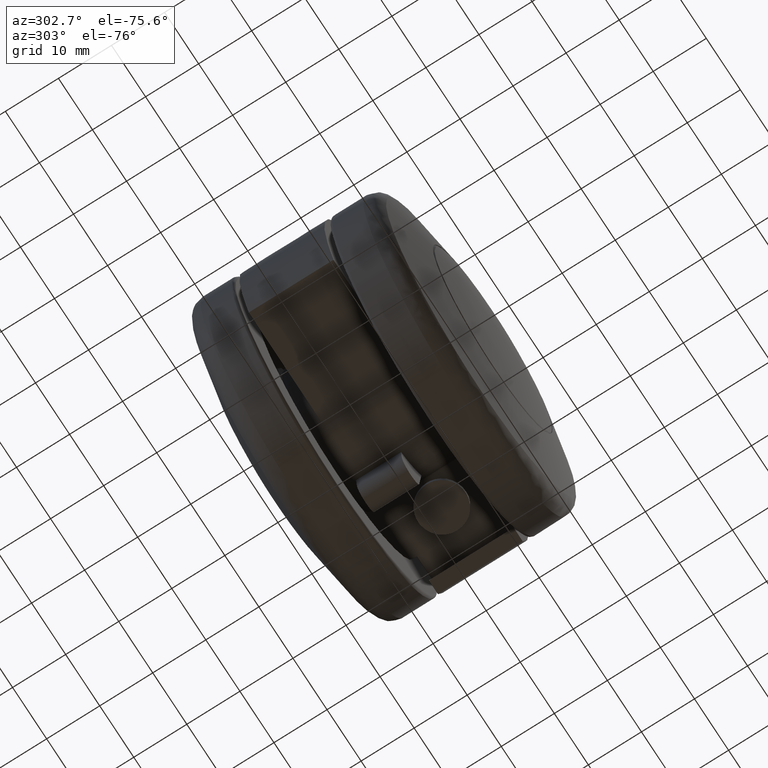
[diagram: clean part render]
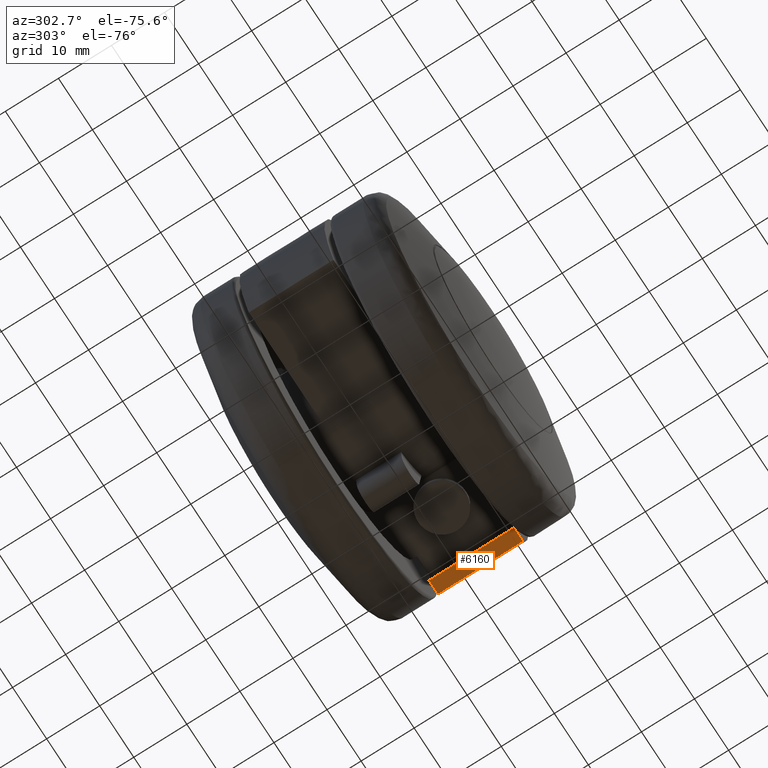
[diagram: same view with one face highlighted and labeled with its STEP entity id]
A machine part, auxiliary view. The second image highlights one B-rep face of the part: STEP entity #6160.
In plain terms, the highlighted face is a freeform B-spline surface patch.
Its self-contained STEP definition (entity closure, byte-faithful):
#6125=CARTESIAN_POINT('',(28.417482642788521,-8.799199968988885,-10.0));
#6126=CARTESIAN_POINT('',(25.484164875787261,-8.799199968988885,-10.0));
#6127=CARTESIAN_POINT('',(28.417482642788521,8.799200398142117,-10.0));
#6128=CARTESIAN_POINT('',(25.484164875787261,8.799200398142117,-10.0));
#6129=B_SPLINE_SURFACE_WITH_KNOTS('',1,1,((#6125,#6127),(#6126,#6128)),.UNSPECIFIED.,.F.,.F.,.U.,(2,2),(2,2),(0.0,2.933317767001256),(0.0,17.598400367130999),.UNSPECIFIED.);
#6130=CARTESIAN_POINT('',(25.617376914899001,7.999999999999789,-10.0));
#6131=VERTEX_POINT('',#6130);
#6132=CARTESIAN_POINT('',(28.284271247461898,7.999999999999789,-10.0));
#6133=VERTEX_POINT('',#6132);
#6134=CARTESIAN_POINT('',(25.617376914899001,7.999999999999789,-10.0));
#6135=CARTESIAN_POINT('',(28.284271247461898,7.999999999999789,-10.0));
#6136=QUASI_UNIFORM_CURVE('',1,(#6134,#6135),.UNSPECIFIED.,.F.,.U.);
#6137=EDGE_CURVE('',#6131,#6133,#6136,.T.);
#6138=ORIENTED_EDGE('',*,*,#6137,.T.);
#6139=CARTESIAN_POINT('',(28.284271247461898,-8.0,-10.0));
#6140=VERTEX_POINT('',#6139);
#6141=CARTESIAN_POINT('',(28.284271247461898,7.999999999999789,-10.0));
#6142=CARTESIAN_POINT('',(28.284271247461898,-8.0,-10.0));
#6143=QUASI_UNIFORM_CURVE('',1,(#6141,#6142),.UNSPECIFIED.,.F.,.U.);
#6144=EDGE_CURVE('',#6133,#6140,#6143,.T.);
#6145=ORIENTED_EDGE('',*,*,#6144,.T.);
#6146=CARTESIAN_POINT('',(25.617376914899001,-8.0,-10.0));
#6147=VERTEX_POINT('',#6146);
#6148=CARTESIAN_POINT('',(28.284271247461898,-8.0,-10.0));
#6149=CARTESIAN_POINT('',(25.617376914899001,-8.0,-10.0));
#6150=QUASI_UNIFORM_CURVE('',1,(#6148,#6149),.UNSPECIFIED.,.F.,.U.);
#6151=EDGE_CURVE('',#6140,#6147,#6150,.T.);
#6152=ORIENTED_EDGE('',*,*,#6151,.T.);
#6153=CARTESIAN_POINT('',(25.617376914899001,7.999999999999789,-10.0));
#6154=CARTESIAN_POINT('',(25.617376914899001,-8.0,-10.0));
#6155=QUASI_UNIFORM_CURVE('',1,(#6153,#6154),.UNSPECIFIED.,.F.,.U.);
#6156=EDGE_CURVE('',#6131,#6147,#6155,.T.);
#6157=ORIENTED_EDGE('',*,*,#6156,.F.);
#6158=EDGE_LOOP('',(#6138,#6145,#6152,#6157));
#6159=FACE_OUTER_BOUND('',#6158,.T.);
#6160=ADVANCED_FACE('',(#6159),#6129,.T.);